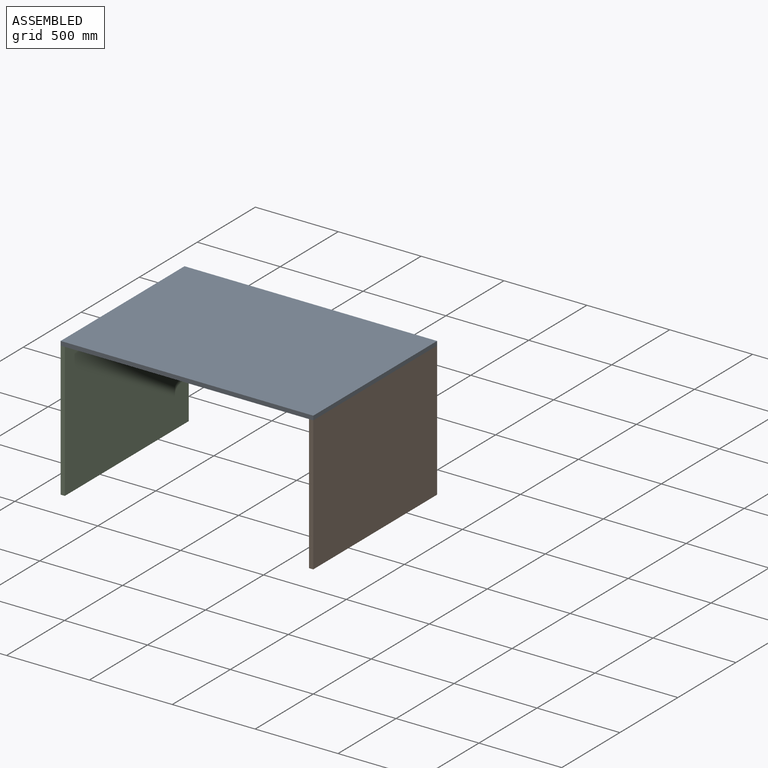
[diagram: assembled view]
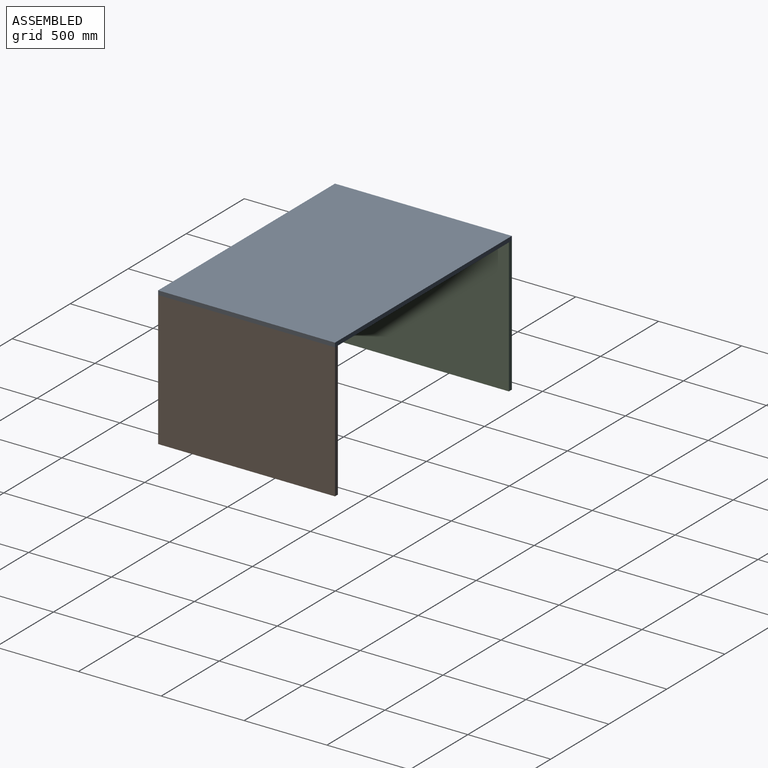
[diagram: assembled view, second angle]
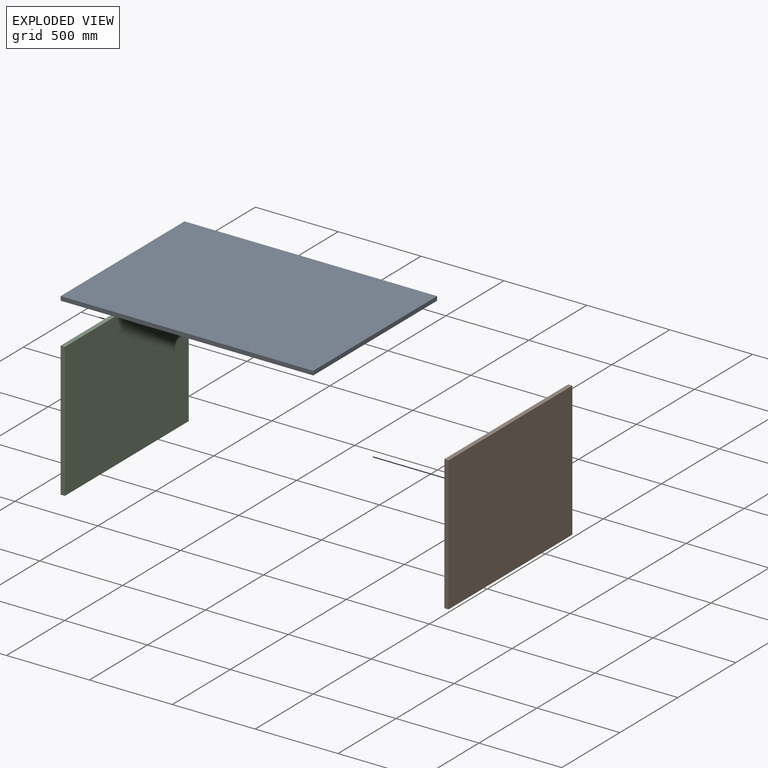
[diagram: exploded view]
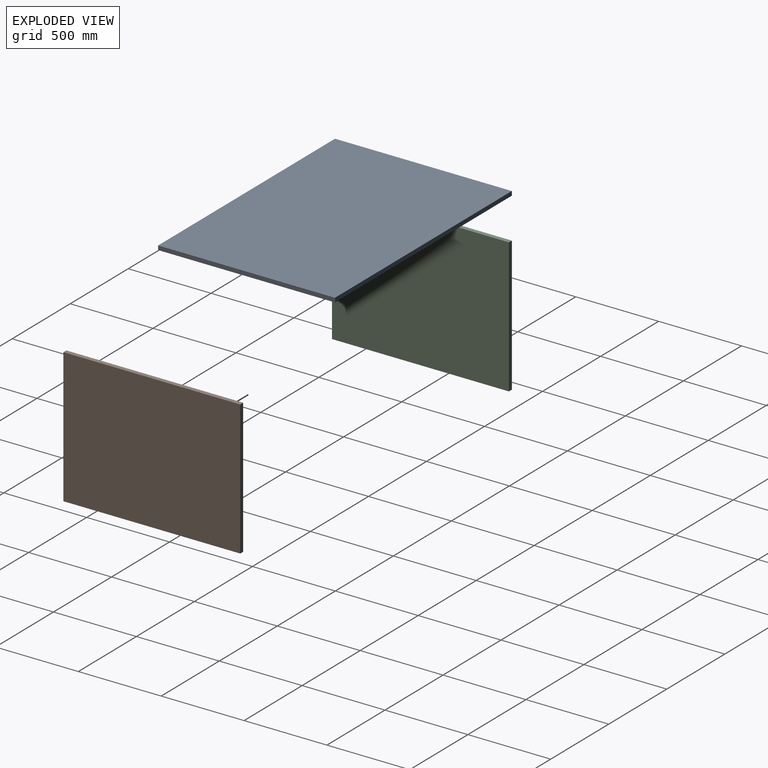
[diagram: exploded view, second angle]
ASSEMBLY  parts=3 mates=7
PART A: 6 faces, bbox 1524x1066.8x25.4 mm
  f0: plane 1524x25.4mm, normal (0,1,0), area 38709.6mm2, adj f1,f3,f4,f5
  f1: plane 1066.8x25.4mm, normal (-1,0,0), area 27096.7mm2, adj f0,f2,f4,f5
  f2: plane 1524x25.4mm, normal (0,-1,0), area 38709.6mm2, adj f1,f3,f4,f5
  f3: plane 1066.8x25.4mm, normal (1,0,0), area 27096.7mm2, adj f0,f2,f4,f5
  f4: plane 1524x1066.8mm, normal (0,0,1), area 1625803.2mm2, adj f0,f1,f2,f3
  f5: plane 1524x1066.8mm, normal (0,0,-1), area 1625803.2mm2, adj f0,f1,f2,f3
PART B: 6 faces, bbox 25.4x1066.8x812.8 mm
  f0: plane 1066.8x25.4mm, normal (0,0,1), area 27096.7mm2, adj f1,f3,f4,f5
  f1: plane 812.8x25.4mm, normal (0,-1,0), area 20645.1mm2, adj f0,f2,f4,f5
  f2: plane 1066.8x25.4mm, normal (0,0,-1), area 27096.7mm2, adj f1,f3,f4,f5
  f3: plane 812.8x25.4mm, normal (0,1,0), area 20645.1mm2, adj f0,f2,f4,f5
  f4: plane 1066.8x812.8mm, normal (1,0,0), area 867095mm2, adj f0,f1,f2,f3
  f5: plane 1066.8x812.8mm, normal (-1,0,0), area 867095mm2, adj f0,f1,f2,f3
PART C: same geometry as B
PLACE A rot(axis=(0,-0.08,-1),0deg) t=(-934.15,460.73,410.8)mm
PLACE B rot(axis=(0,-0.08,-1),0deg) t=(-197.55,994.13,-402)mm
PLACE C rot(axis=(0,-0.08,-1),0deg) t=(-1696.15,994.13,-402)mm
MATE planar C.f0 <-> A.f5  axis (0,0,1) through (-1683.45,994.13,410.8)mm
MATE planar C.f1 <-> A.f2  axis (0,-1,0) through (-1683.45,460.73,4.4)mm
MATE planar A.f2 <-> B.f1  axis (0,-1,0) through (-934.15,460.73,423.5)mm
MATE parallel A.f5 <-> B.f0  axis (0,0,-1) through (-934.15,994.13,410.8)mm
MATE planar A.f3 <-> B.f4  axis (1,0,0) through (-172.15,994.13,423.5)mm
MATE planar B.f0 <-> A.f5  axis (0,0,1) through (-184.85,994.13,410.8)mm
MATE planar A.f1 <-> C.f5  axis (-1,0,0) through (-1696.15,994.13,423.5)mm
